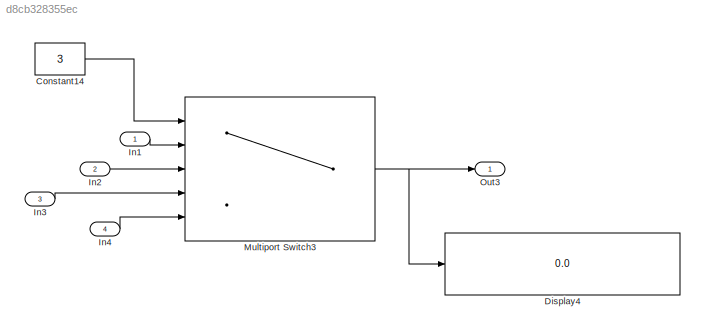
MODEL slx_d8cb328355ec
KIND model
CONFIG AbsTol = auto
CONFIG EnableMultiTasking = off
CONFIG FixedStep = 0.200000
CONFIG MaxStep = auto
CONFIG MinStep = auto
CONFIG RelTol = 1e-3
CONFIG SampleTimeConstraint = Unconstrained
CONFIG Solver = FixedStepDiscrete
CONFIG SolverName = FixedStepDiscrete
CONFIG StartTime = 0.0
CONFIG StopTime = 10.0
BLOCK [Constant] Constant14
  Value = 3
BLOCK [Display] Display4
  Decimation = 1
  Ports = [1]
BLOCK [Inport] In1
  IconDisplay = Port number
  PortDimensions = [2,3]
BLOCK [Inport] In2
  IconDisplay = Port number
  Port = 2
  PortDimensions = [2,3]
BLOCK [Inport] In3
  IconDisplay = Port number
  Port = 3
  PortDimensions = [2,3]
BLOCK [Inport] In4
  IconDisplay = Port number
  Port = 4
  PortDimensions = [2,3]
BLOCK [MultiPortSwitch] Multiport Switch3
  DataPortForDefault = Additional data port
  InputSameDT = off
  Ports = [5, 1]
  SaturateOnIntegerOverflow = off
BLOCK [Outport] Out3
  IconDisplay = Port number
LINE Constant14:1 -> Multiport Switch3:1
LINE In1:1 -> Multiport Switch3:2
LINE In2:1 -> Multiport Switch3:3
LINE In3:1 -> Multiport Switch3:4
LINE In4:1 -> Multiport Switch3:5
NET Multiport Switch3:1 -> Display4:1, Out3:1
note: NET lines group one-source signal fan-out (src -> all destinations, sorted); 1:1 wires keep LINE
